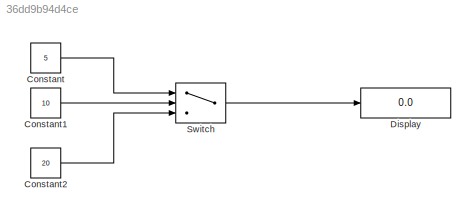
MODEL slx_36dd9b94d4ce
KIND model
CONFIG AbsTol = auto
CONFIG EnableMultiTasking = off
CONFIG FixedStep = auto
CONFIG MaxStep = auto
CONFIG MinStep = auto
CONFIG RelTol = 1e-3
CONFIG SampleTimeConstraint = Unconstrained
CONFIG SolverName = VariableStepAuto
CONFIG StartTime = 0.0
CONFIG StopTime = 10.0
BLOCK [Constant] Constant
  Value = 5
BLOCK [Constant] Constant1
  Value = 10
BLOCK [Constant] Constant2
  Value = 20
BLOCK [Display] Display
  Decimation = 1
  Ports = [1]
BLOCK [Switch] Switch
  Criteria = u2 > Threshold
  InputSameDT = off
  SaturateOnIntegerOverflow = off
  Threshold = 11
LINE Constant1:1 -> Switch:2
LINE Constant2:1 -> Switch:3
LINE Constant:1 -> Switch:1
LINE Switch:1 -> Display:1
